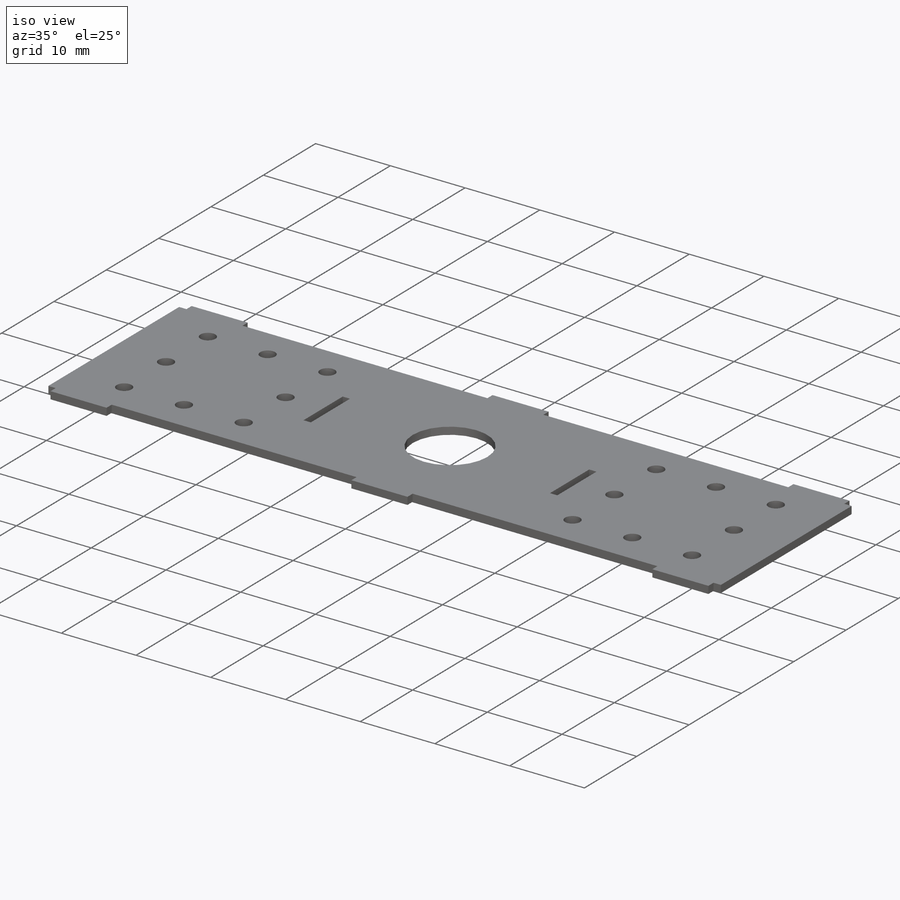
[diagram: iso view]
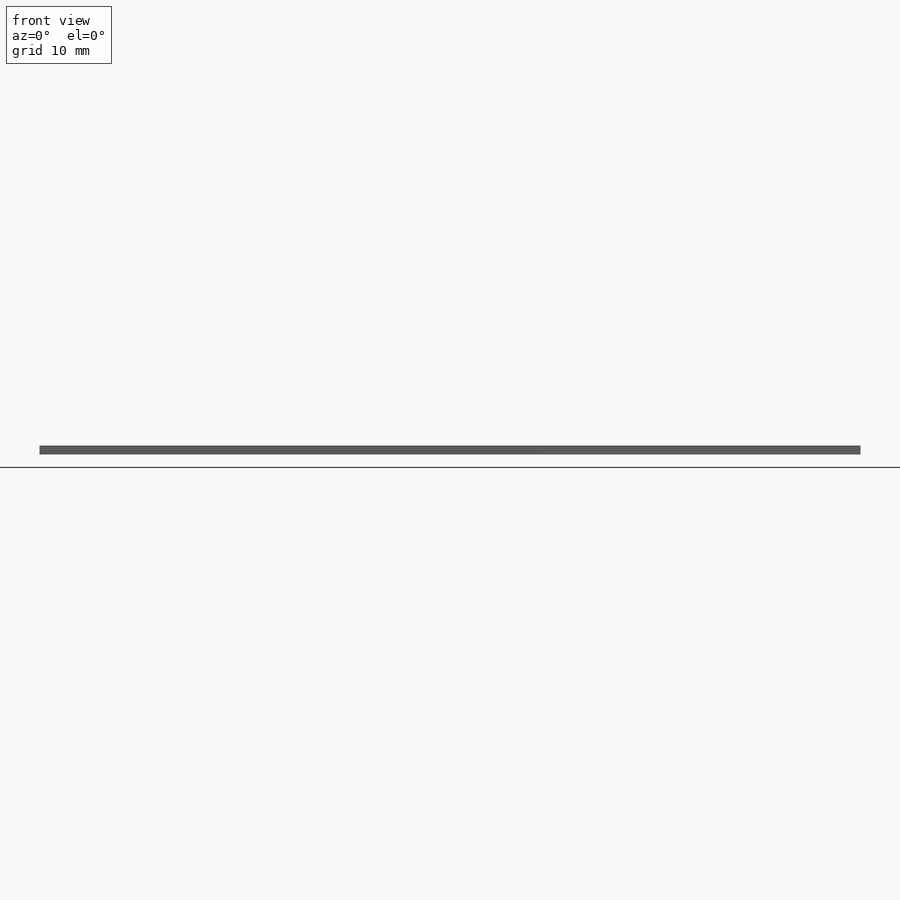
[diagram: front view]
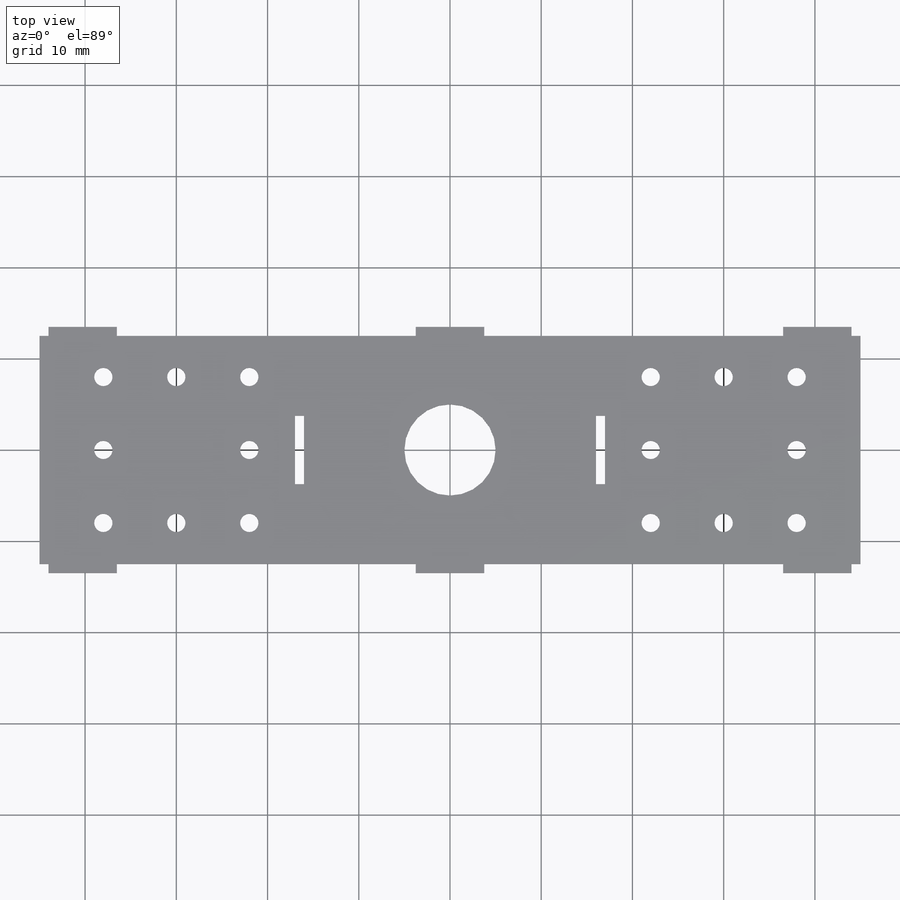
[diagram: top view]
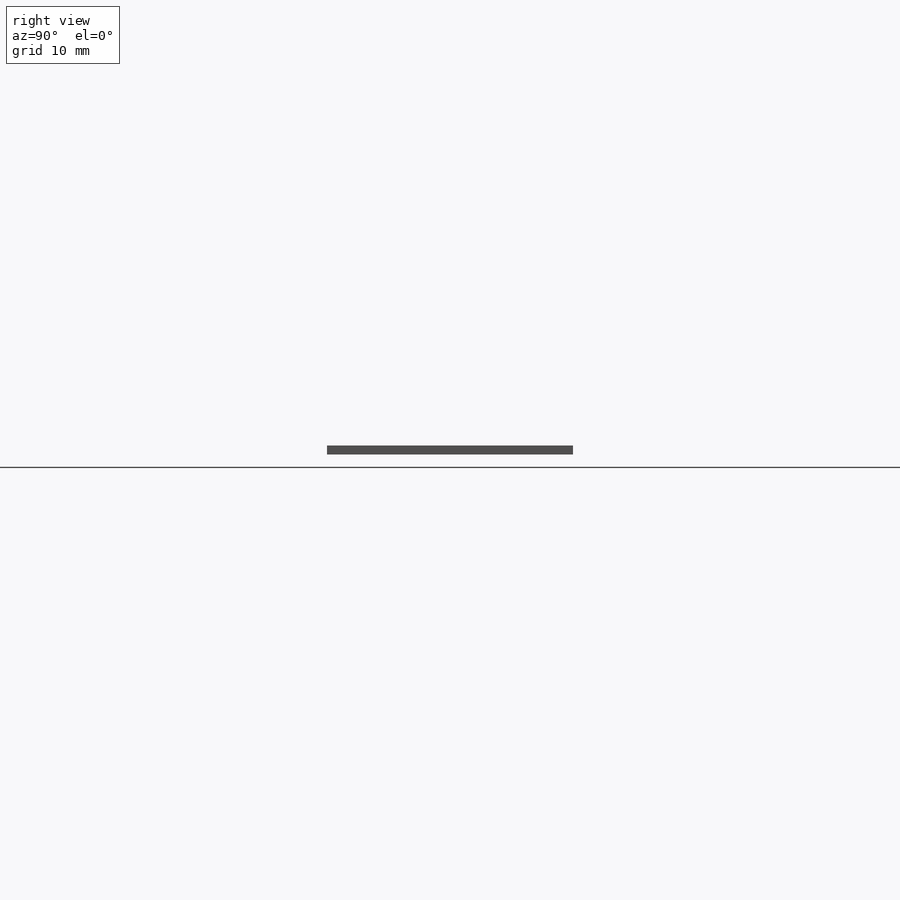
[diagram: right view]
SOLIDWORKS PART (.sldprt)
format: sldprt  version: not decoded by parser v0  size: 247,808 bytes
history: native  units: mm
features: sketch x5, cut_extrude x3, extrude x2, mirror x2, material x1 (+12 scaffold rows collapsed)
feature tree (25):
  scaffold x12  (default folders/planes/origin — collapsed)
  material  "PVC Rigid"
  sketch  "Sketch1"  dims[c1.D1=~37.627811mm c1.D2=~172.440035mm c2.D1=90.0mm c2.D2=25.0mm]
  extrude  "Boss-Extrude1"  Depth=3mm
  sketch  "Sketch2"  dims[c1.D3=2.0mm c1.D4=2.0mm c1.D1=~10.345827mm c1.D2=~14.734478mm c2.D1=16.0mm c2.D2=30.0mm c2.D4=~9.858175mm]
  cut_extrude  "Cut-Extrude1"  [1 undecoded]
  sketch  "Sketch3"  dims[D1=10.0mm]
  cut_extrude  "Cut-Extrude2"  [1 undecoded]
  sketch  "Sketch4"  dims[c1.D1=~7.05887mm c1.D2=~2.532353mm c2.D1=3.0mm c2.D2=7.5mm c2.D3=16.0mm c2.D4=16.0mm c3.D3=16.0mm]
  cut_extrude  "Cut-Extrude3"  [1 undecoded]
  mirror  "Mirror1"
  sketch  "Sketch5"  dims[c1.D1=~1.325281mm c1.D2=~4.23711mm c2.D1=7.0mm c2.D2=1.27mm c2.D3=~2.933057mm c3.D2=7.0mm c3.D3=40.0mm c3.D4=~0.966377mm c4.D3=3.0mm]
  extrude  "Boss-Extrude2"  Depth=3mm
  mirror  "Mirror2"
decode coverage: 7 of 12 modeling features carry decoded parameters
note: ~ marks probable driven/reference dimensions
note: 3 parameter values undecoded
summary: no parameter record found for 3 features
note: suppression state not decoded; provenance and decode notes live in map.json
